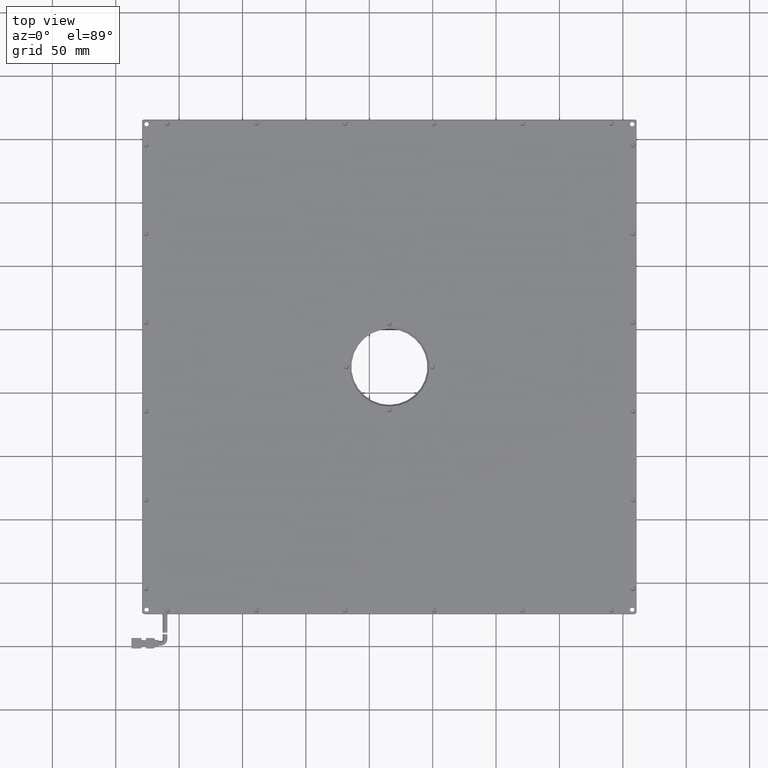
[diagram: clean part render]
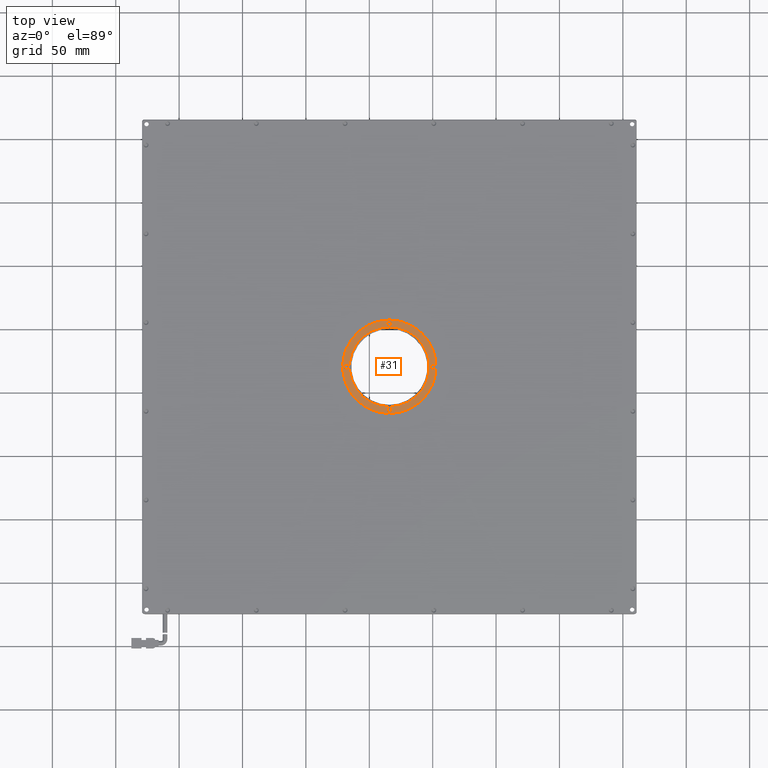
[diagram: same view with one face highlighted and labeled with its STEP entity id]
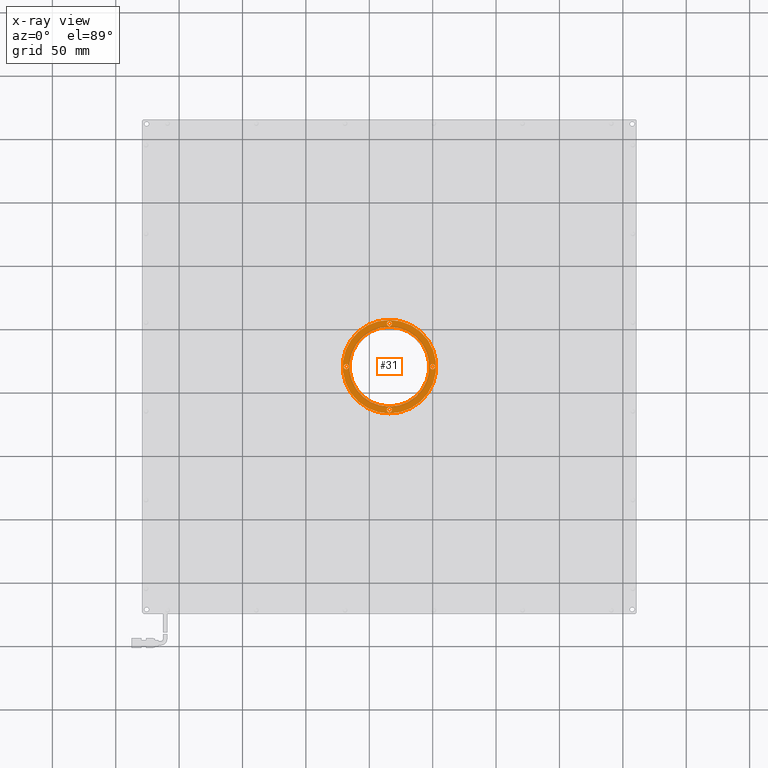
[diagram: x-ray of the same camera — body ghosted, the highlighted face saturated]
A machine part, top view. The second image highlights one B-rep face of the part: STEP entity #31.
The next image is the same camera in x-ray: the body ghosted, the highlighted face saturated — about 0% of this face is hidden behind the body in this view.
In plain terms, the highlighted planar face has unit normal (0, 0, -1).
Its self-contained STEP definition (entity closure, byte-faithful):
#5 = VERTEX_POINT ( 'NONE', #13775 ) ;
#31 = ADVANCED_FACE ( 'NONE', ( #17655, #10441, #5920, #90, #13129, #19814 ), #5278, .F. ) ;
#90 = FACE_BOUND ( 'NONE', #18043, .T. ) ;
#132 = CIRCLE ( 'NONE', #16717, 31.49999999999998600 ) ;
#223 = CARTESIAN_POINT ( 'NONE',  ( -4.148401798538859700, 20.42297297297205100, 8.250000000000000000 ) ) ;
#295 = DIRECTION ( 'NONE',  ( 0.0000000000000000000, 0.0000000000000000000, -1.000000000000000000 ) ) ;
#480 = VERTEX_POINT ( 'NONE', #11956 ) ;
#782 = ORIENTED_EDGE ( 'NONE', *, *, #20757, .F. ) ;
#1167 = VERTEX_POINT ( 'NONE', #19581 ) ;
#1254 = CARTESIAN_POINT ( 'NONE',  ( -0.1484017985388663700, 20.42297297297205100, 8.249999999980790500 ) ) ;
#1270 = ORIENTED_EDGE ( 'NONE', *, *, #15227, .F. ) ;
#1438 = AXIS2_PLACEMENT_3D ( 'NONE', #16583, #13102, #11614 ) ;
#1514 = CARTESIAN_POINT ( 'NONE',  ( -0.1484017985388663700, 20.42297297297205100, 8.249999999980790500 ) ) ;
#1521 = ORIENTED_EDGE ( 'NONE', *, *, #10097, .F. ) ;
#1597 = AXIS2_PLACEMENT_3D ( 'NONE', #1254, #8208, #13383 ) ;
#1841 = AXIS2_PLACEMENT_3D ( 'NONE', #5873, #21364, #6022 ) ;
#2127 = VERTEX_POINT ( 'NONE', #21456 ) ;
#3106 = EDGE_CURVE ( 'NONE', #2127, #1167, #6189, .T. ) ;
#3169 = CIRCLE ( 'NONE', #21839, 1.999999999952706300 ) ;
#3202 = DIRECTION ( 'NONE',  ( 1.000000000000000000, 0.0000000000000000000, 0.0000000000000000000 ) ) ;
#3672 = EDGE_CURVE ( 'NONE', #13663, #13701, #13597, .T. ) ;
#3673 = CARTESIAN_POINT ( 'NONE',  ( -34.14840179853875000, 54.42297297297204800, 8.250000000037633900 ) ) ;
#3784 = EDGE_CURVE ( 'NONE', #480, #12838, #3169, .T. ) ;
#3842 = VERTEX_POINT ( 'NONE', #22022 ) ;
#4016 = ORIENTED_EDGE ( 'NONE', *, *, #3106, .F. ) ;
#4033 = AXIS2_PLACEMENT_3D ( 'NONE', #4600, #16591, #11164 ) ;
#4153 = DIRECTION ( 'NONE',  ( 0.0000000000000000000, 1.000000000000000000, 0.0000000000000000000 ) ) ;
#4388 = VERTEX_POINT ( 'NONE', #15674 ) ;
#4465 = ORIENTED_EDGE ( 'NONE', *, *, #7755, .F. ) ;
#4600 = CARTESIAN_POINT ( 'NONE',  ( -68.14840179853887000, 20.42297297297205100, 8.249999999980790500 ) ) ;
#4644 = EDGE_LOOP ( 'NONE', ( #4016, #782 ) ) ;
#5036 = DIRECTION ( 'NONE',  ( 2.168404345083914800E-016, 0.0000000000000000000, 1.000000000000000000 ) ) ;
#5278 = PLANE ( 'NONE',  #9189 ) ;
#5436 = EDGE_LOOP ( 'NONE', ( #5509, #4465 ) ) ;
#5509 = ORIENTED_EDGE ( 'NONE', *, *, #3672, .F. ) ;
#5623 = AXIS2_PLACEMENT_3D ( 'NONE', #11693, #20342, #11769 ) ;
#5729 = CIRCLE ( 'NONE', #1841, 36.90000000000001300 ) ;
#5873 = CARTESIAN_POINT ( 'NONE',  ( -34.14840179853887000, 20.42297297297205100, 8.249999999999996400 ) ) ;
#5920 = FACE_BOUND ( 'NONE', #18413, .T. ) ;
#6022 = DIRECTION ( 'NONE',  ( 0.0000000000000000000, 1.000000000000000000, 0.0000000000000000000 ) ) ;
#6178 = EDGE_CURVE ( 'NONE', #12838, #480, #11754, .T. ) ;
#6189 = CIRCLE ( 'NONE', #1438, 2.000000000001361600 ) ;
#6201 = EDGE_CURVE ( 'NONE', #5, #10027, #6933, .T. ) ;
#6592 = CARTESIAN_POINT ( 'NONE',  ( -34.14840179853875000, 54.42297297297204800, 8.250000000037633900 ) ) ;
#6933 = CIRCLE ( 'NONE', #5623, 31.49999999999998600 ) ;
#6960 = DIRECTION ( 'NONE',  ( 2.168404344828519100E-016, 0.0000000000000000000, 1.000000000000000000 ) ) ;
#7700 = ORIENTED_EDGE ( 'NONE', *, *, #3784, .F. ) ;
#7755 = EDGE_CURVE ( 'NONE', #13701, #13663, #14270, .T. ) ;
#7781 = CIRCLE ( 'NONE', #9849, 2.000000000074581200 ) ;
#7842 = CIRCLE ( 'NONE', #19463, 2.000000000074581200 ) ;
#8139 = EDGE_CURVE ( 'NONE', #21552, #3842, #5729, .T. ) ;
#8208 = DIRECTION ( 'NONE',  ( 2.168404345083914800E-016, 0.0000000000000000000, 1.000000000000000000 ) ) ;
#8405 = DIRECTION ( 'NONE',  ( 1.000000000000000000, 0.0000000000000000000, 0.0000000000000000000 ) ) ;
#8752 = CARTESIAN_POINT ( 'NONE',  ( -66.14840179858616400, 20.42297297297205100, 8.249999999980790500 ) ) ;
#8952 = CARTESIAN_POINT ( 'NONE',  ( -34.14840179853887000, 20.42297297297205100, 8.250000000000003600 ) ) ;
#8954 = CARTESIAN_POINT ( 'NONE',  ( 1.851598201413839500, 20.42297297297205100, 8.249999999980790500 ) ) ;
#9117 = CARTESIAN_POINT ( 'NONE',  ( -34.14840179853886300, -16.47702702702795800, 8.249999999999996400 ) ) ;
#9189 = AXIS2_PLACEMENT_3D ( 'NONE', #223, #295, #13914 ) ;
#9293 = DIRECTION ( 'NONE',  ( 0.0000000000000000000, 0.0000000000000000000, -1.000000000000000000 ) ) ;
#9818 = VERTEX_POINT ( 'NONE', #20095 ) ;
#9849 = AXIS2_PLACEMENT_3D ( 'NONE', #3673, #6960, #13683 ) ;
#10027 = VERTEX_POINT ( 'NONE', #11965 ) ;
#10097 = EDGE_CURVE ( 'NONE', #9818, #4388, #7781, .T. ) ;
#10211 = CARTESIAN_POINT ( 'NONE',  ( -34.14840179853922600, -13.57702702702795100, 8.249999999923947100 ) ) ;
#10441 = FACE_BOUND ( 'NONE', #20619, .T. ) ;
#11164 = DIRECTION ( 'NONE',  ( 1.000000000000000000, 0.0000000000000000000, 0.0000000000000000000 ) ) ;
#11614 = DIRECTION ( 'NONE',  ( 1.000000000000000000, 0.0000000000000000000, 0.0000000000000000000 ) ) ;
#11693 = CARTESIAN_POINT ( 'NONE',  ( -34.14840179853887000, 20.42297297297205100, 8.250000000000003600 ) ) ;
#11754 = CIRCLE ( 'NONE', #4033, 1.999999999952706300 ) ;
#11769 = DIRECTION ( 'NONE',  ( 0.0000000000000000000, -1.000000000000000000, 0.0000000000000000000 ) ) ;
#11956 = CARTESIAN_POINT ( 'NONE',  ( -70.14840179849157700, 20.42297297297205100, 8.249999999980790500 ) ) ;
#11965 = CARTESIAN_POINT ( 'NONE',  ( -34.14840179853886300, 51.92297297297203300, 8.250000000000003600 ) ) ;
#12690 = ORIENTED_EDGE ( 'NONE', *, *, #21869, .F. ) ;
#12838 = VERTEX_POINT ( 'NONE', #8752 ) ;
#13102 = DIRECTION ( 'NONE',  ( 2.168404344969532500E-016, 0.0000000000000000000, 1.000000000000000000 ) ) ;
#13129 = FACE_BOUND ( 'NONE', #5436, .T. ) ;
#13277 = AXIS2_PLACEMENT_3D ( 'NONE', #10211, #18655, #8405 ) ;
#13383 = DIRECTION ( 'NONE',  ( 1.000000000000000000, 0.0000000000000000000, 0.0000000000000000000 ) ) ;
#13422 = ORIENTED_EDGE ( 'NONE', *, *, #22043, .F. ) ;
#13597 = CIRCLE ( 'NONE', #1597, 1.999999999952706300 ) ;
#13663 = VERTEX_POINT ( 'NONE', #8954 ) ;
#13683 = DIRECTION ( 'NONE',  ( 1.000000000000000000, 0.0000000000000000000, 0.0000000000000000000 ) ) ;
#13701 = VERTEX_POINT ( 'NONE', #15816 ) ;
#13721 = ORIENTED_EDGE ( 'NONE', *, *, #6178, .F. ) ;
#13775 = CARTESIAN_POINT ( 'NONE',  ( -34.14840179853887000, -11.07702702702793500, 8.250000000000003600 ) ) ;
#13914 = DIRECTION ( 'NONE',  ( 0.0000000000000000000, 1.000000000000000000, 0.0000000000000000000 ) ) ;
#14270 = CIRCLE ( 'NONE', #21791, 1.999999999952706300 ) ;
#14314 = CIRCLE ( 'NONE', #13277, 2.000000000001361600 ) ;
#15227 = EDGE_CURVE ( 'NONE', #3842, #21552, #17442, .T. ) ;
#15674 = CARTESIAN_POINT ( 'NONE',  ( -32.14840179846417100, 54.42297297297204800, 8.250000000037633900 ) ) ;
#15729 = DIRECTION ( 'NONE',  ( 0.0000000000000000000, 0.0000000000000000000, 1.000000000000000000 ) ) ;
#15813 = DIRECTION ( 'NONE',  ( 0.0000000000000000000, -1.000000000000000000, 0.0000000000000000000 ) ) ;
#15816 = CARTESIAN_POINT ( 'NONE',  ( -2.148401798491573100, 20.42297297297205100, 8.249999999980790500 ) ) ;
#16173 = ORIENTED_EDGE ( 'NONE', *, *, #8139, .F. ) ;
#16583 = CARTESIAN_POINT ( 'NONE',  ( -34.14840179853922600, -13.57702702702795100, 8.249999999923947100 ) ) ;
#16591 = DIRECTION ( 'NONE',  ( 2.168404345083914800E-016, 0.0000000000000000000, 1.000000000000000000 ) ) ;
#16717 = AXIS2_PLACEMENT_3D ( 'NONE', #8952, #15729, #15813 ) ;
#16860 = CARTESIAN_POINT ( 'NONE',  ( -68.14840179853887000, 20.42297297297205100, 8.249999999980790500 ) ) ;
#16892 = ORIENTED_EDGE ( 'NONE', *, *, #6201, .F. ) ;
#17442 = CIRCLE ( 'NONE', #21183, 36.90000000000001300 ) ;
#17655 = FACE_OUTER_BOUND ( 'NONE', #18931, .T. ) ;
#18043 = EDGE_LOOP ( 'NONE', ( #12690, #1521 ) ) ;
#18413 = EDGE_LOOP ( 'NONE', ( #13721, #7700 ) ) ;
#18605 = DIRECTION ( 'NONE',  ( 1.000000000000000000, 0.0000000000000000000, 0.0000000000000000000 ) ) ;
#18655 = DIRECTION ( 'NONE',  ( 2.168404344969532500E-016, 0.0000000000000000000, 1.000000000000000000 ) ) ;
#18931 = EDGE_LOOP ( 'NONE', ( #1270, #16173 ) ) ;
#19463 = AXIS2_PLACEMENT_3D ( 'NONE', #6592, #21868, #20243 ) ;
#19541 = CARTESIAN_POINT ( 'NONE',  ( -34.14840179853887000, 20.42297297297205100, 8.249999999999996400 ) ) ;
#19581 = CARTESIAN_POINT ( 'NONE',  ( -36.14840179854058300, -13.57702702702795100, 8.249999999923947100 ) ) ;
#19814 = FACE_BOUND ( 'NONE', #4644, .T. ) ;
#20095 = CARTESIAN_POINT ( 'NONE',  ( -36.14840179861333500, 54.42297297297204800, 8.250000000037633900 ) ) ;
#20243 = DIRECTION ( 'NONE',  ( 1.000000000000000000, 0.0000000000000000000, 0.0000000000000000000 ) ) ;
#20342 = DIRECTION ( 'NONE',  ( 0.0000000000000000000, 0.0000000000000000000, 1.000000000000000000 ) ) ;
#20435 = DIRECTION ( 'NONE',  ( 2.168404345083914800E-016, 0.0000000000000000000, 1.000000000000000000 ) ) ;
#20619 = EDGE_LOOP ( 'NONE', ( #16892, #13422 ) ) ;
#20757 = EDGE_CURVE ( 'NONE', #1167, #2127, #14314, .T. ) ;
#21183 = AXIS2_PLACEMENT_3D ( 'NONE', #19541, #9293, #4153 ) ;
#21364 = DIRECTION ( 'NONE',  ( 0.0000000000000000000, 0.0000000000000000000, -1.000000000000000000 ) ) ;
#21456 = CARTESIAN_POINT ( 'NONE',  ( -32.14840179853786100, -13.57702702702795100, 8.249999999923947100 ) ) ;
#21552 = VERTEX_POINT ( 'NONE', #9117 ) ;
#21791 = AXIS2_PLACEMENT_3D ( 'NONE', #1514, #20435, #3202 ) ;
#21839 = AXIS2_PLACEMENT_3D ( 'NONE', #16860, #5036, #18605 ) ;
#21868 = DIRECTION ( 'NONE',  ( 2.168404344828519100E-016, 0.0000000000000000000, 1.000000000000000000 ) ) ;
#21869 = EDGE_CURVE ( 'NONE', #4388, #9818, #7842, .T. ) ;
#22022 = CARTESIAN_POINT ( 'NONE',  ( -34.14840179853887000, 57.32297297297206700, 8.249999999999996400 ) ) ;
#22043 = EDGE_CURVE ( 'NONE', #10027, #5, #132, .T. ) ;